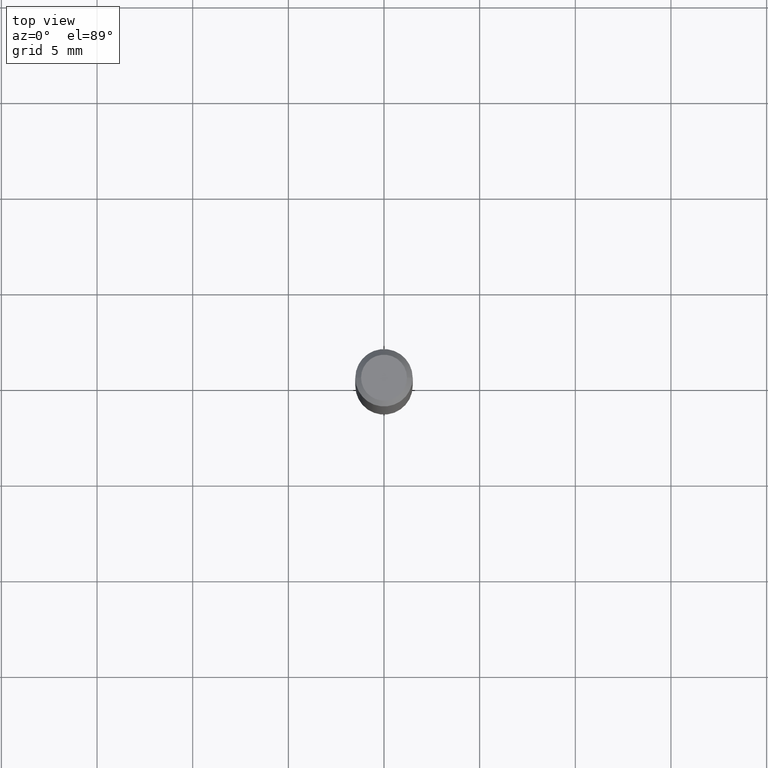
[diagram: clean part render]
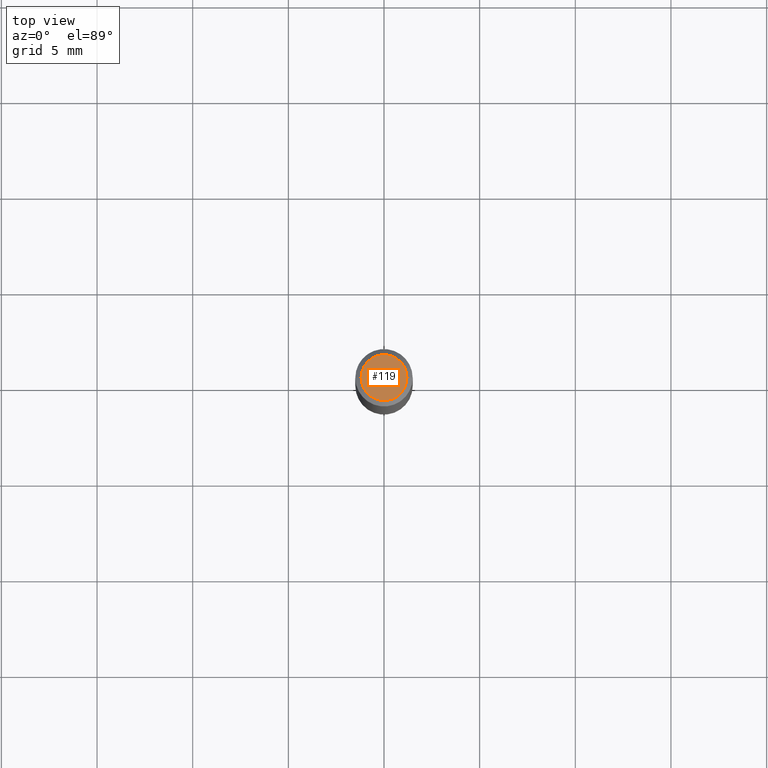
[diagram: same view with one face highlighted and labeled with its STEP entity id]
A machine part, top view. The second image highlights one B-rep face of the part: STEP entity #119.
In plain terms, the highlighted planar face has unit normal (0, -0, -1).
Its self-contained STEP definition (entity closure, byte-faithful):
#1 = DIRECTION ( 'NONE',  ( -2.445468806185136597E-29, 3.491481338843145583E-15, 1.000000000000000000 ) ) ;
#12 = AXIS2_PLACEMENT_3D ( 'NONE', #398, #436, #483 ) ;
#41 = DIRECTION ( 'NONE',  ( 1.000000000000000000, -6.982962677686266711E-15, 4.876185090822587894E-29 ) ) ;
#93 = AXIS2_PLACEMENT_3D ( 'NONE', #485, #1, #41 ) ;
#114 = VERTEX_POINT ( 'NONE', #149 ) ;
#119 = ADVANCED_FACE ( 'NONE', ( #310 ), #277, .F. ) ;
#145 = VERTEX_POINT ( 'NONE', #169 ) ;
#149 = CARTESIAN_POINT ( 'NONE',  ( 0.04724000000000000421, -3.852183633974369345E-16, -3.380025165621689721E-19 ) ) ;
#169 = CARTESIAN_POINT ( 'NONE',  ( -0.04724000000000000421, 3.504923541997677355E-16, -3.380025165670481712E-19 ) ) ;
#189 = CIRCLE ( 'NONE', #12, 0.04724000000000000421 ) ;
#237 = CARTESIAN_POINT ( 'NONE',  ( 4.132873053354867254E-48, -5.900647395337818946E-34, -1.690012582823346072E-19 ) ) ;
#264 = ORIENTED_EDGE ( 'NONE', *, *, #274, .T. ) ;
#269 = DIRECTION ( 'NONE',  ( -1.000000000000000000, 6.982962677686265922E-15, -4.876176775795935793E-29 ) ) ;
#274 = EDGE_CURVE ( 'NONE', #145, #114, #189, .T. ) ;
#277 = PLANE ( 'NONE',  #471 ) ;
#308 = EDGE_CURVE ( 'NONE', #114, #145, #347, .T. ) ;
#310 = FACE_OUTER_BOUND ( 'NONE', #450, .T. ) ;
#347 = CIRCLE ( 'NONE', #93, 0.04724000000000000421 ) ;
#357 = ORIENTED_EDGE ( 'NONE', *, *, #308, .T. ) ;
#398 = CARTESIAN_POINT ( 'NONE',  ( 8.265746106709734507E-48, -1.180129479067563789E-33, -3.380025165646692144E-19 ) ) ;
#436 = DIRECTION ( 'NONE',  ( -2.445468806185136597E-29, 3.491481338843145583E-15, 1.000000000000000000 ) ) ;
#450 = EDGE_LOOP ( 'NONE', ( #264, #357 ) ) ;
#461 = DIRECTION ( 'NONE',  ( 2.438088387897960049E-29, -3.491481338843145188E-15, -1.000000000000000000 ) ) ;
#471 = AXIS2_PLACEMENT_3D ( 'NONE', #237, #461, #269 ) ;
#483 = DIRECTION ( 'NONE',  ( 1.000000000000000000, -6.982962677686266711E-15, 4.876185090822587894E-29 ) ) ;
#485 = CARTESIAN_POINT ( 'NONE',  ( 8.265746106709734507E-48, -1.180129479067563789E-33, -3.380025165646692144E-19 ) ) ;